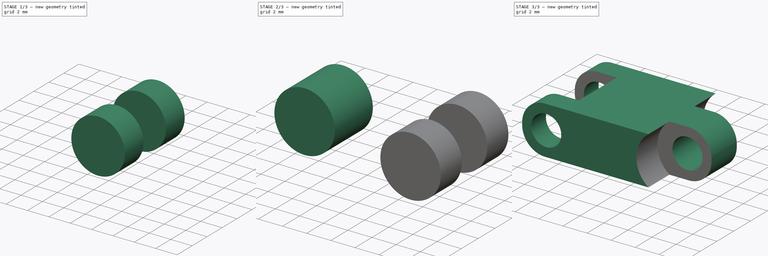
[diagram: build sequence overview — one tinted view per stage of 3, left to right]
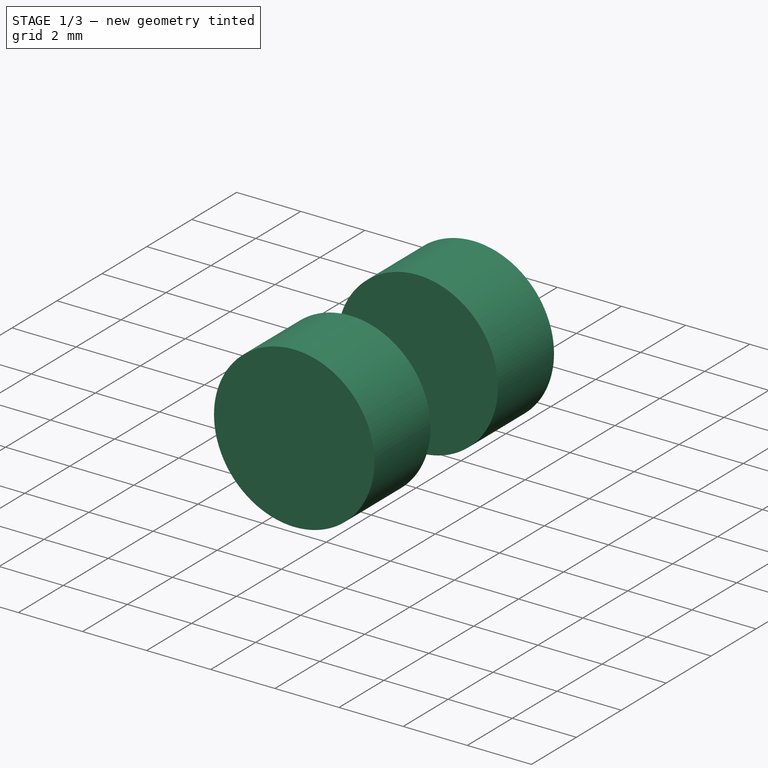
[diagram: stage 1 of 3 — iso view after this stage's code; geometry added in this stage tinted green]
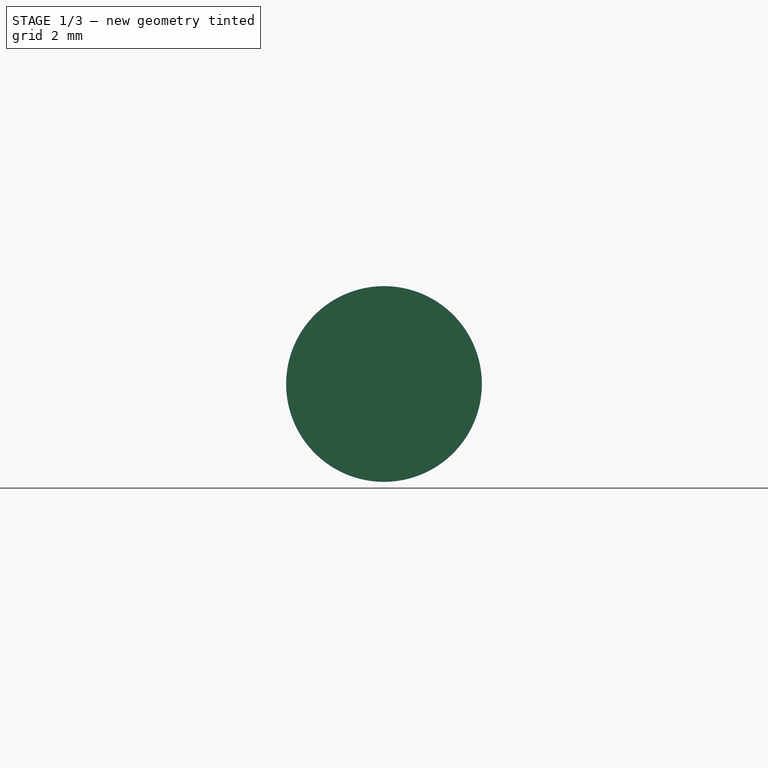
[diagram: stage 1 of 3 — front view after this stage's code; geometry added in this stage tinted green]
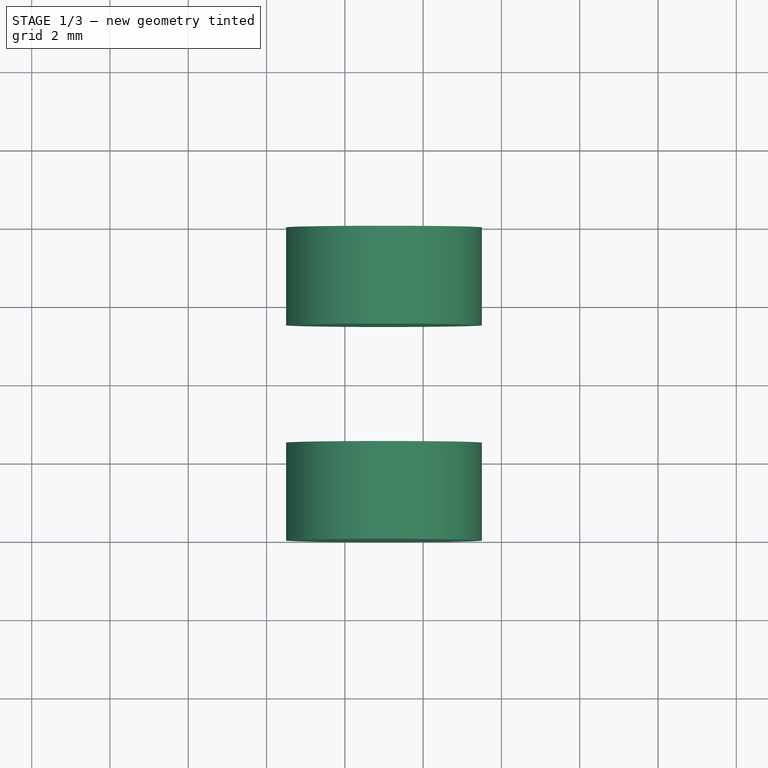
[diagram: stage 1 of 3 — top view after this stage's code; geometry added in this stage tinted green]
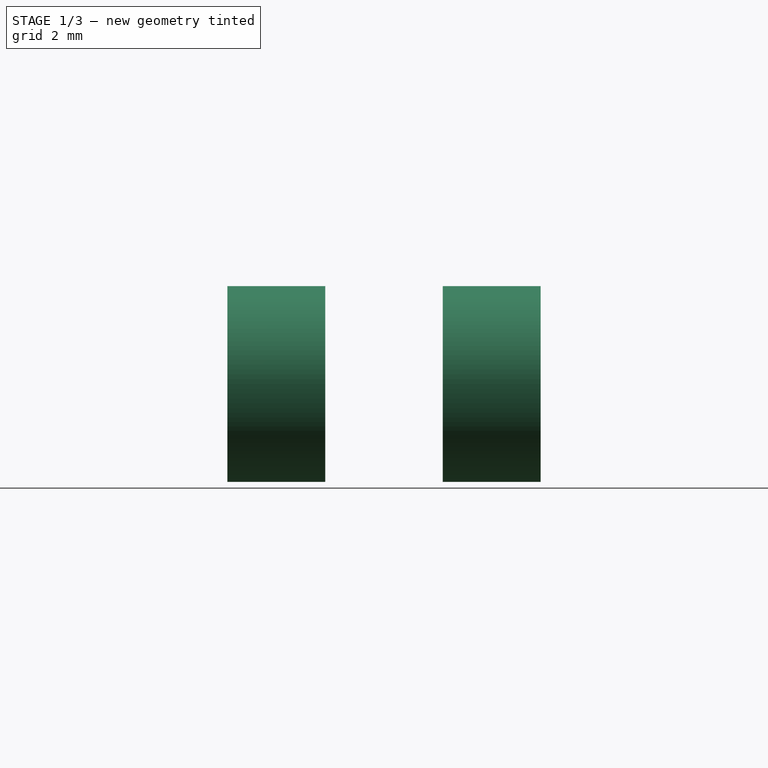
[diagram: stage 1 of 3 — right view after this stage's code; geometry added in this stage tinted green]
FCSTD DOCUMENT  (FreeCAD 0.14R2935 (Git))
Label: track-segment-00
License: CC-BY 3.0
LicenseURL: http://creativecommons.org/licenses/by/3.0/
objects: Part::Cylinder×3, Sketcher::SketchObject×1, PartDesign::Pad×1, Part::MultiFuse×1, Part::Cut×1
note: 8 computed .brp shape members not serialized (recipe doc carries the construction recipe); baked Part::Feature solids carry a one-line shape summary decoded from their .brp

FEATURE [Part::Cylinder] Cylinder001
  Angle = 360
  Height = 2.5
  Placement = pos=(5,4,0) rot=(1,0,0;1.5708rad)
  Radius = 2.5
FEATURE [Part::Cylinder] Cylinder002
  Angle = 360
  Height = 2.5
  Placement = pos=(5,-1.5,0) rot=(1,0,0;1.5708rad)
  Radius = 2.5
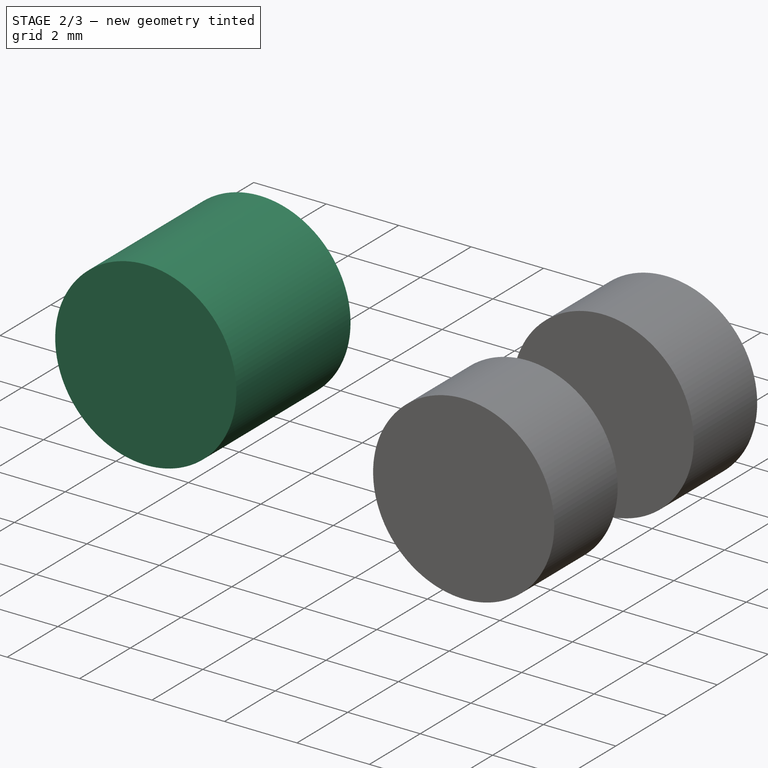
[diagram: stage 2 of 3 — iso view after this stage's code; geometry added in this stage tinted green]
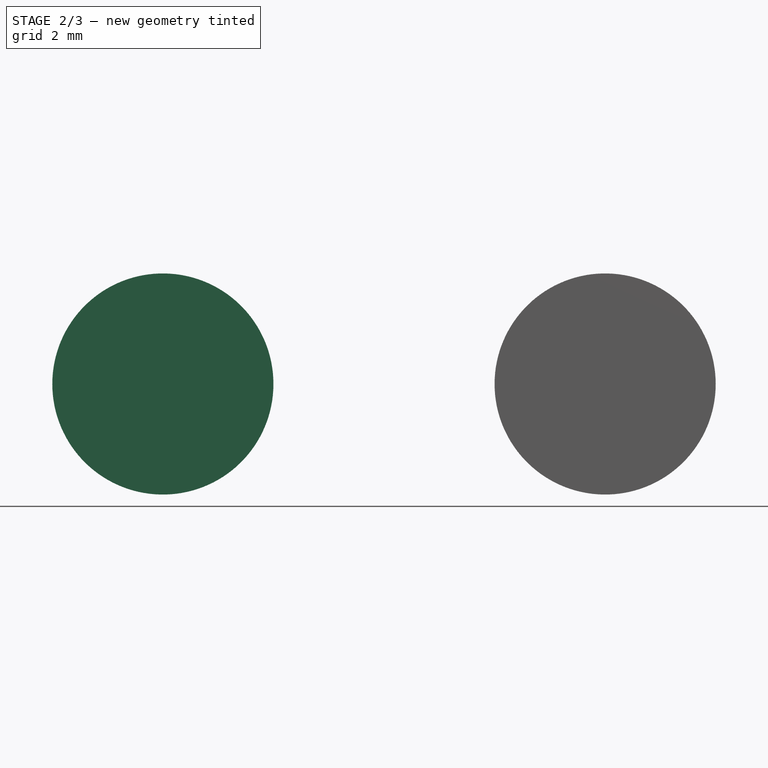
[diagram: stage 2 of 3 — front view after this stage's code; geometry added in this stage tinted green]
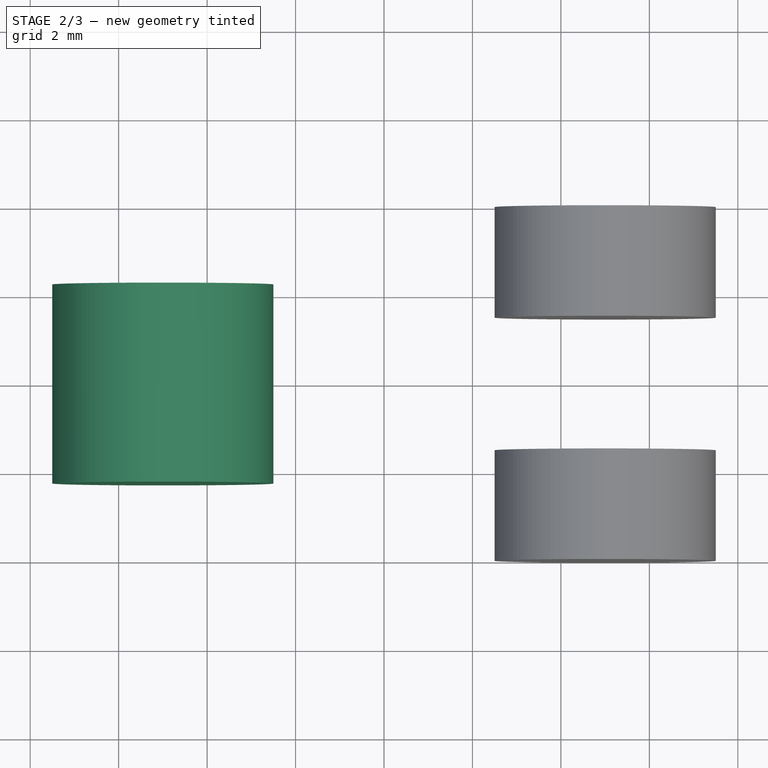
[diagram: stage 2 of 3 — top view after this stage's code; geometry added in this stage tinted green]
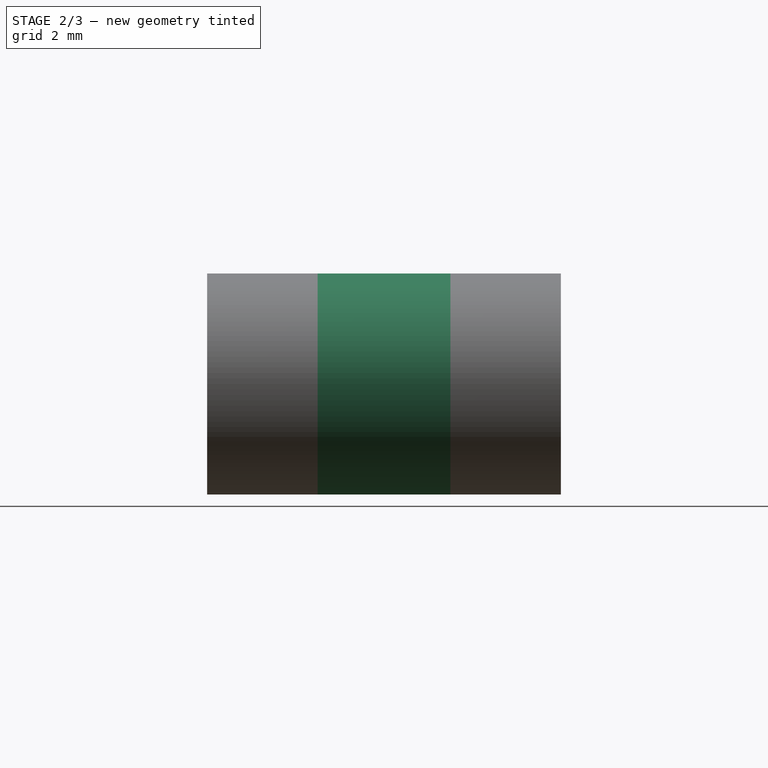
[diagram: stage 2 of 3 — right view after this stage's code; geometry added in this stage tinted green]
FEATURE [Part::Cylinder] Cylinder
  Angle = 360
  Height = 4.5
  Placement = pos=(-5,2.25,0) rot=(1,0,0;1.5708rad)
  Radius = 2.5
FEATURE [Part::MultiFuse] Fusion  label="axes-cutout"
  Shapes = -> [Cylinder,Cylinder001,Cylinder002]
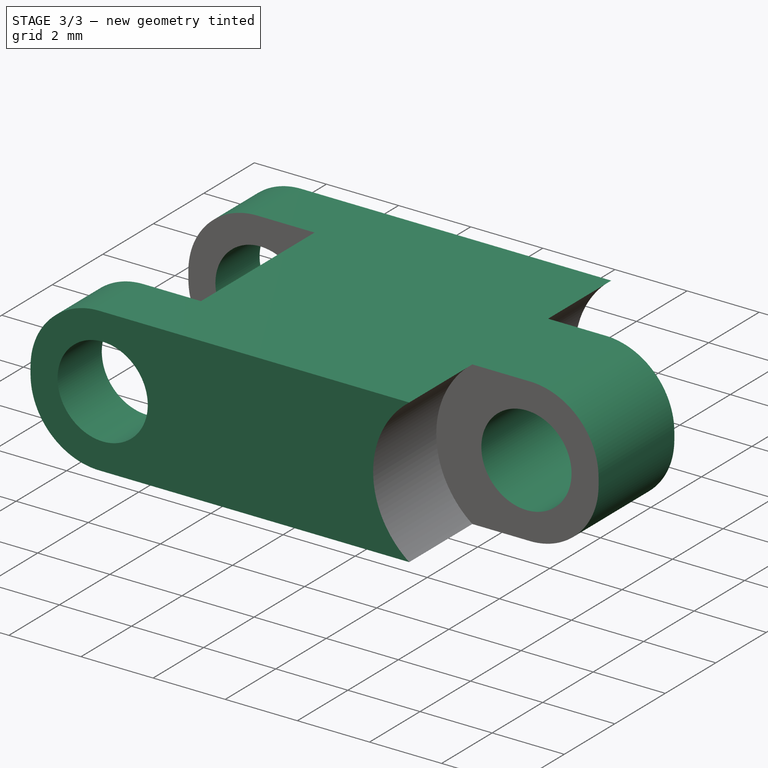
[diagram: stage 3 of 3 — iso view after this stage's code; geometry added in this stage tinted green]
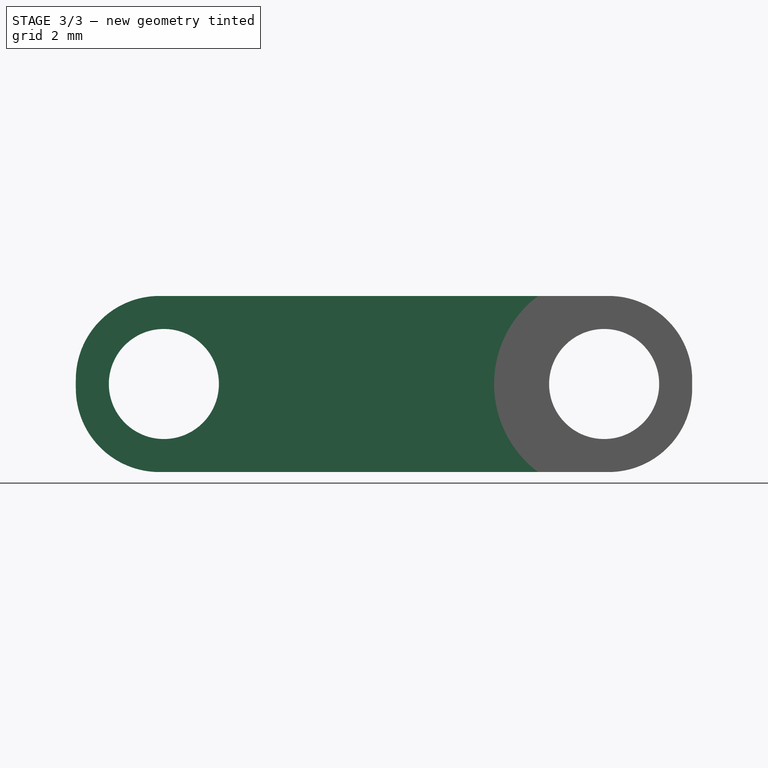
[diagram: stage 3 of 3 — front view after this stage's code; geometry added in this stage tinted green]
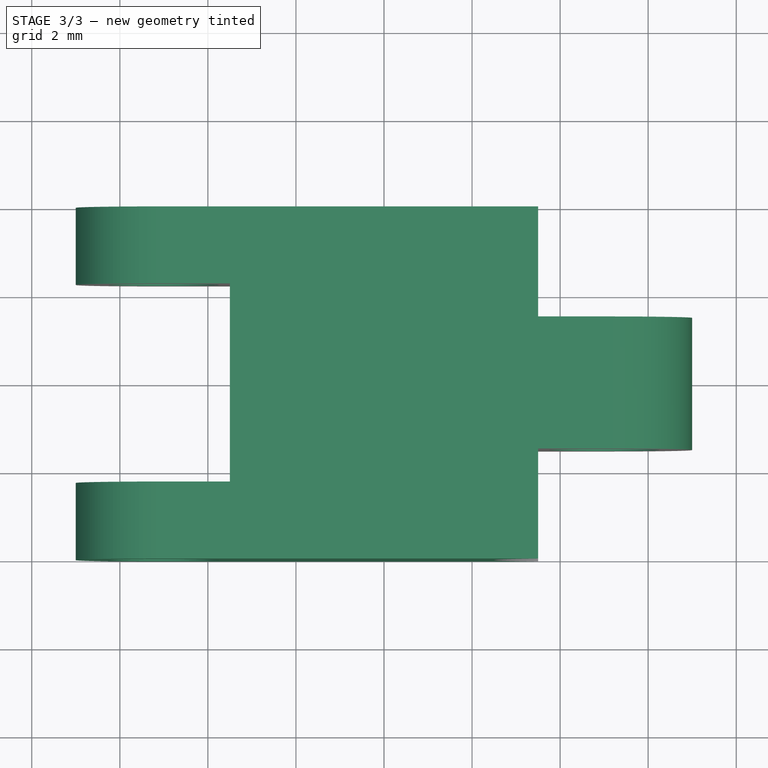
[diagram: stage 3 of 3 — top view after this stage's code; geometry added in this stage tinted green]
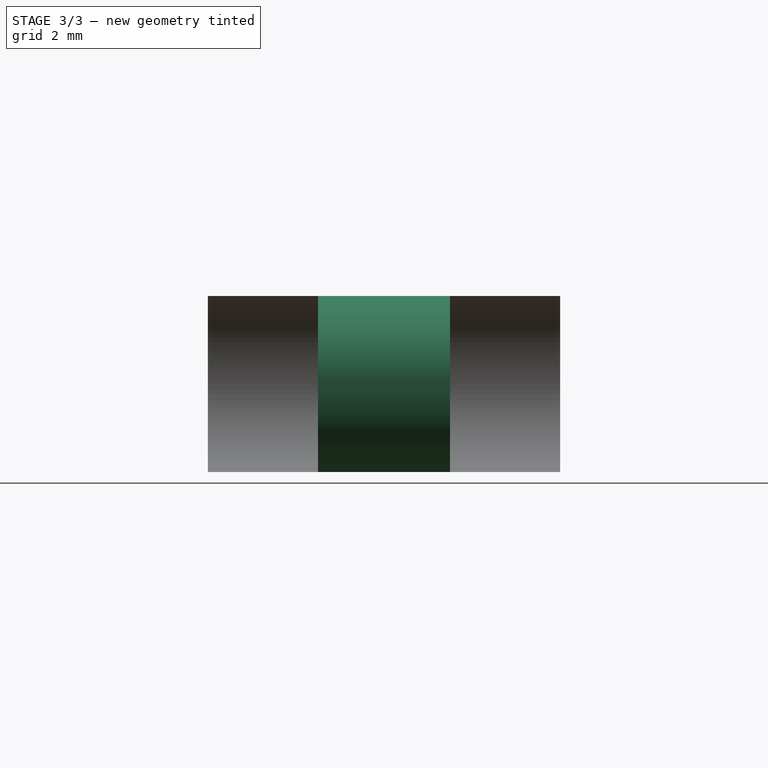
[diagram: stage 3 of 3 — right view after this stage's code; geometry added in this stage tinted green]
FEATURE [Sketcher::SketchObject] Sketch  label="axes-cutouts"
  Placement = pos=(0,0,0) rot=(1,0,0;1.5708rad)
  sketch-geometry (10):
    g0: Circle CenterX=-5 CenterY=0 CenterZ=0 NormalX=0 NormalY=0 NormalZ=1 Radius=1.25
    g1: Circle CenterX=5 CenterY=0 CenterZ=0 NormalX=0 NormalY=0 NormalZ=1 Radius=1.25
    g2: LineSegment StartX=-5.1 StartY=2 StartZ=0 EndX=5.1 EndY=2 EndZ=0
    g3: LineSegment StartX=7 StartY=0.1 StartZ=0 EndX=7 EndY=-0.1 EndZ=0
    g4: LineSegment StartX=5.1 StartY=-2 StartZ=0 EndX=-5.1 EndY=-2 EndZ=0
    g5: LineSegment StartX=-7 StartY=-0.1 StartZ=0 EndX=-7 EndY=0.1 EndZ=0
    g6: ArcOfCircle CenterX=-5.1 CenterY=0.1 CenterZ=0 NormalX=0 NormalY=0 NormalZ=1 Radius=1.9 StartAngle=1.5708 EndAngle=3.14159
    g7: ArcOfCircle CenterX=5.1 CenterY=0.1 CenterZ=0 NormalX=0 NormalY=0 NormalZ=1 Radius=1.9 StartAngle=0 EndAngle=1.5708
    g8: ArcOfCircle CenterX=5.1 CenterY=-0.1 CenterZ=0 NormalX=0 NormalY=0 NormalZ=1 Radius=1.9 StartAngle=4.71239 EndAngle=6.28319
    g9: ArcOfCircle CenterX=-5.1 CenterY=-0.1 CenterZ=0 NormalX=0 NormalY=0 NormalZ=1 Radius=1.9 StartAngle=3.14159 EndAngle=4.71239
  constraints (26):
    c: Radius(g0) = 1.25
    c: Radius(g1) = 1.25
    c: DistanceY(g-1,g1) = 0
    c: DistanceY(g-1,g0) = 0
    c: DistanceX(g-1,g0) = -5
    c: DistanceX(g-1,g1) = 5
    c: Horizontal(g2)
    c: Horizontal(g4)
    c: Vertical(g3)
    c: Vertical(g5)
    c: Tangent(g5,g6)
    c: Tangent(g2,g6)
    c: Tangent(g2,g7)
    c: Tangent(g3,g7)
    c: Tangent(g3,g8)
    c: Tangent(g4,g8)
    c: Tangent(g4,g9)
    c: Tangent(g5,g9)
    c: Radius(g6) = 1.9
    c: Radius(g9) = 1.9
    c: Radius(g7) = 1.9
    c: Radius(g8) = 1.9
    c: DistanceX(g-1,g5) = -7
    c: DistanceY(g-1,g2) = 2
    c: DistanceX(g-1,g3) = 7
    c: DistanceY(g-1,g4) = -2
FEATURE [PartDesign::Pad] Pad
  Length = 8
  Length2 = 100
  Midplane = true
  Placement = pos=(0,0,0) rot=(1,0,0;1.5708rad)
  Sketch = -> Sketch
  Type = 0
FEATURE [Part::Cut] Cut  label="track-shape"
  Base = -> Pad
  Tool = -> Fusion
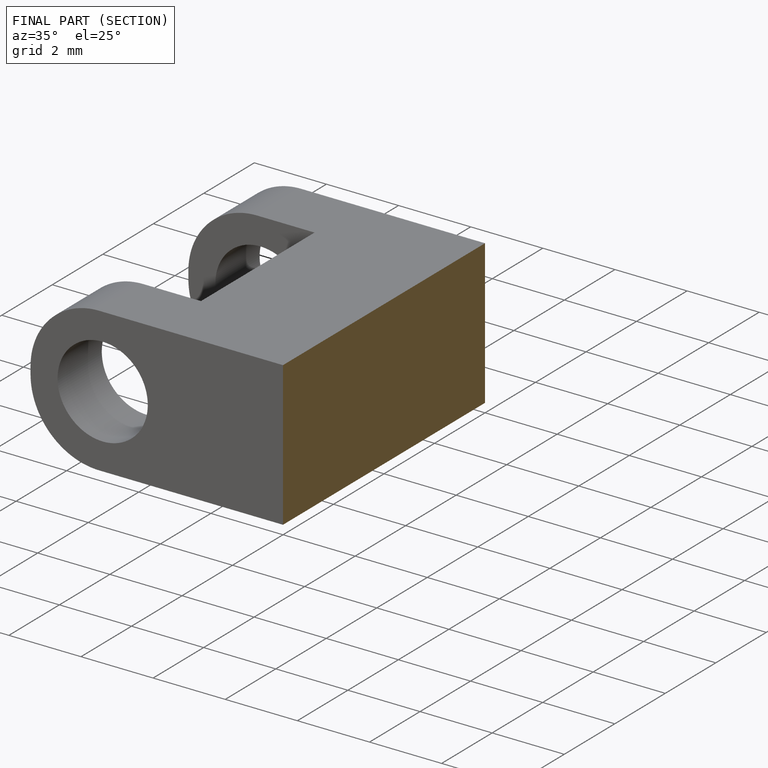
[diagram: finished part — half-section view (interior)]
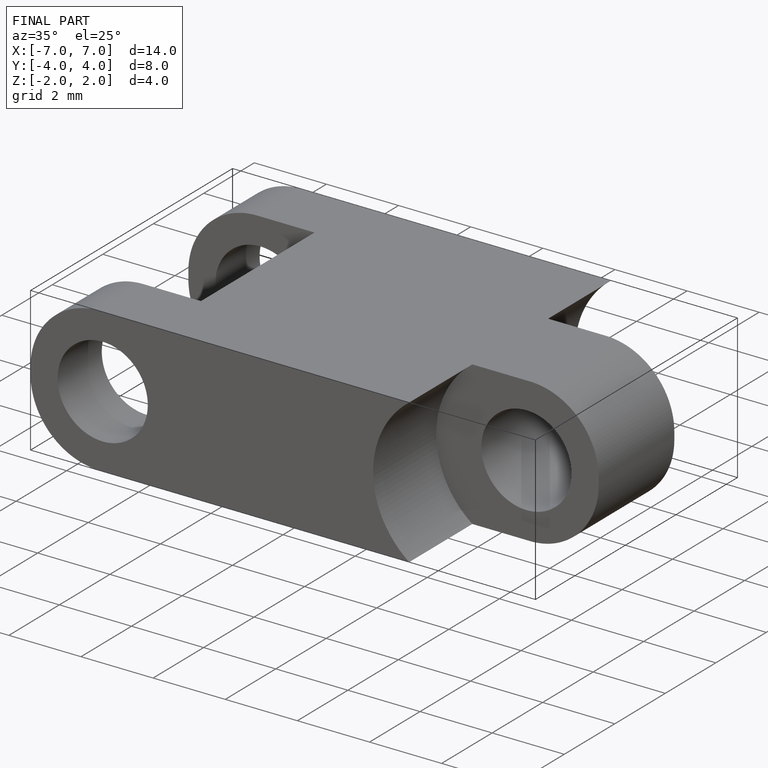
[diagram: finished part — iso view with bounding-box wireframe]
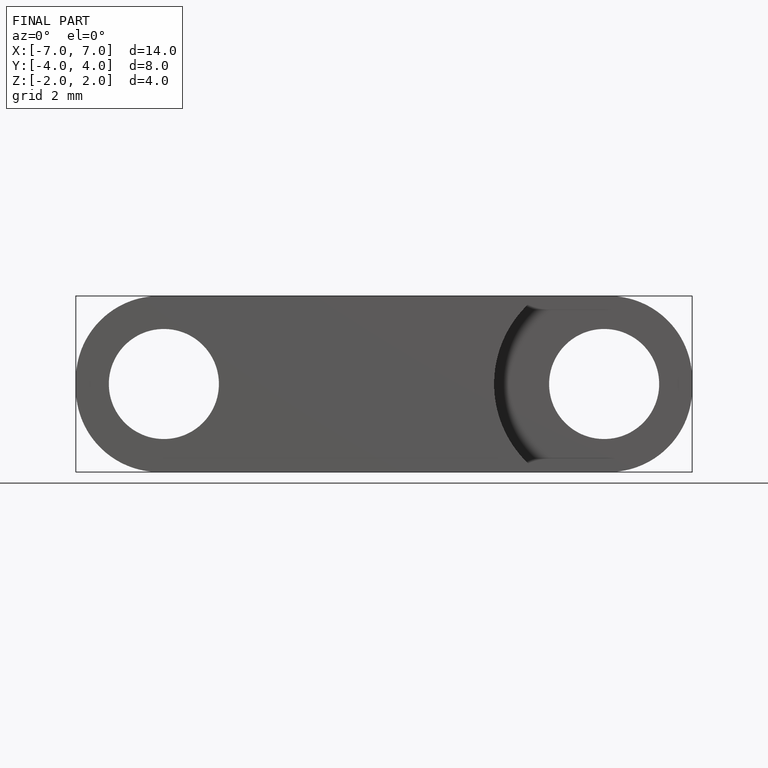
[diagram: finished part — front view with bounding-box wireframe]
